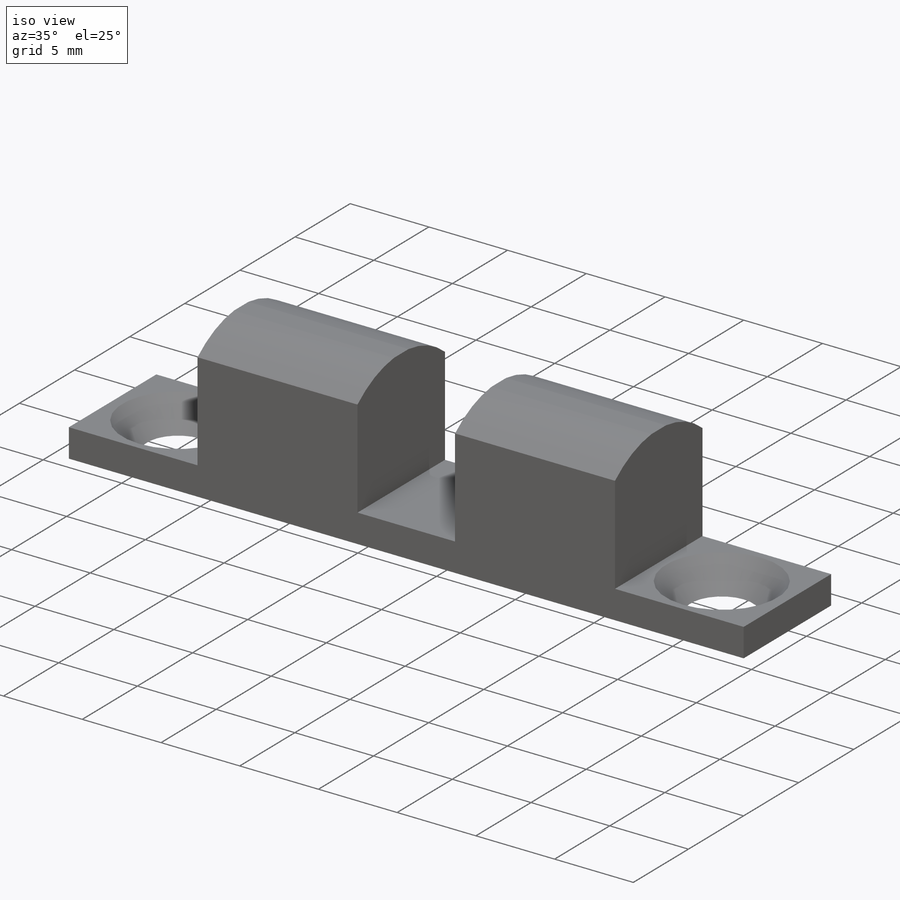
[diagram: iso view]
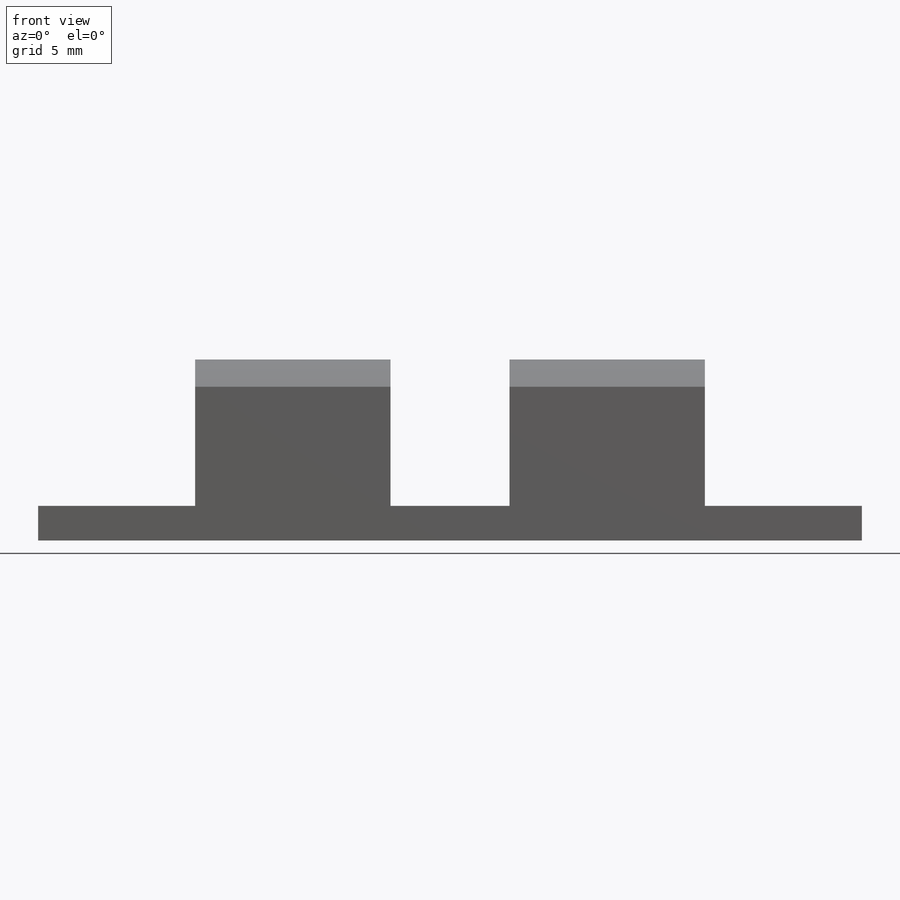
[diagram: front view]
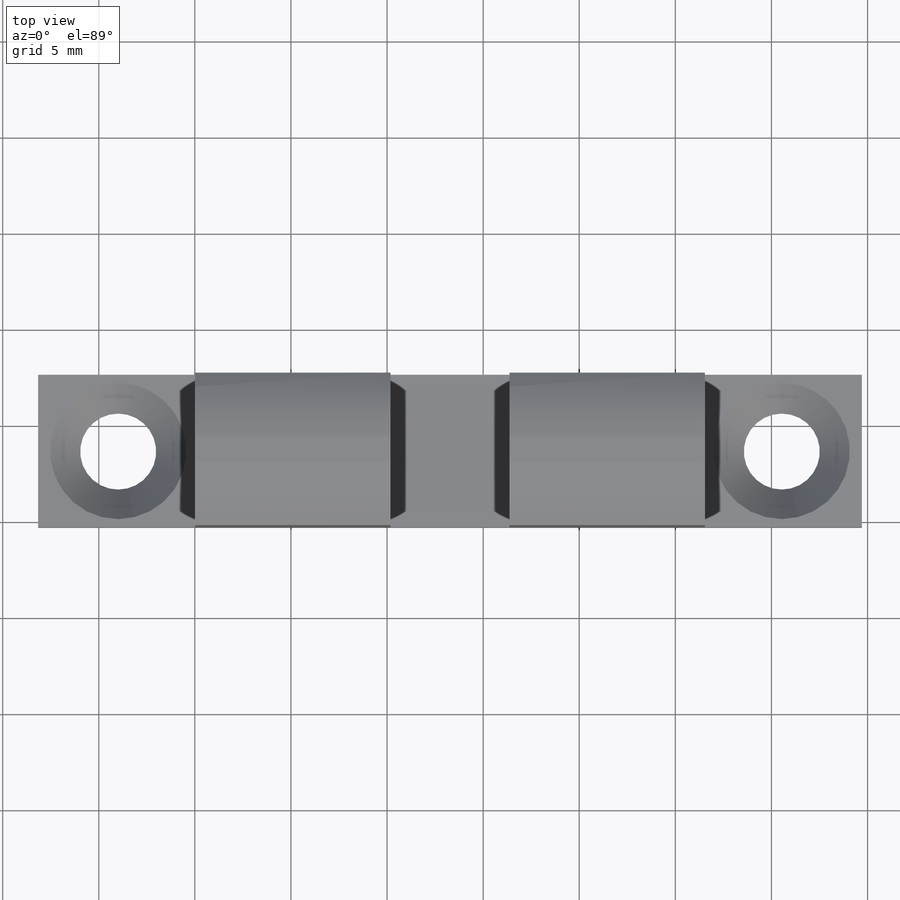
[diagram: top view]
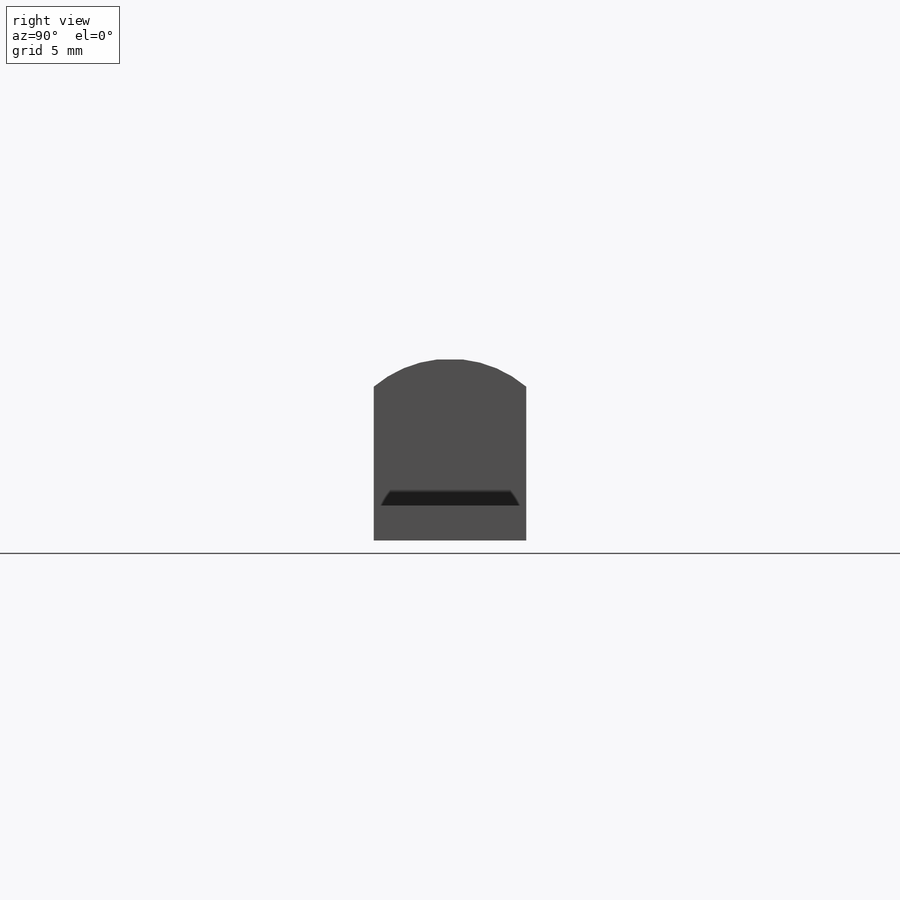
[diagram: right view]
SOLIDWORKS PART (.sldprt)
format: sldprt  version: not decoded by parser v0  size: 209,408 bytes
history: native  units: mm
features: sketch x5, extrude x2, material x1, cut_extrude x1, hole x1 (+11 scaffold rows collapsed)
feature tree (21):
  scaffold x11  (default folders/planes/origin — collapsed)
  material  "Material <not specified>"
  sketch  "Sketch2"  dims[D1=7.9375mm D2=42.8625mm]
  extrude  "Boss-Extrude1"  Depth=1.8034mm
  sketch  "Sketch3"  dims[D2=10.16mm D3=26.5176mm D4=~8.17245mm D1=2.0]
  extrude  "Boss-Extrude2"  Depth=7.62mm
  sketch  "Sketch5"
  cut_extrude  "Cut-Extrude1"  [1 undecoded]
  hole  "CSK for #6 Flat Head Machine Screw1"  Diameter=3.7973mm Depth=1.8034mm
  sketch  "Sketch7"  dims[D1=~34.528125mm D2=~4.167187mm D3=~3.96875mm D4=~3.96875mm]
  sketch  "Sketch6"  dims[hole-wizard template sketch: 55 standard entries collapsed; hole parameters kept: c17.Thru Hole Depth=1.8034mm c17.Near C'Sink Dia.=7.0866mm c17.D4=~3.666174mm c17.Near C'Sink Angle=82.0deg]
decode coverage: 7 of 9 modeling features carry decoded parameters
note: ~ marks probable driven/reference dimensions
note: 1 parameter value undecoded
note: suppression state not decoded; provenance and decode notes live in map.json
